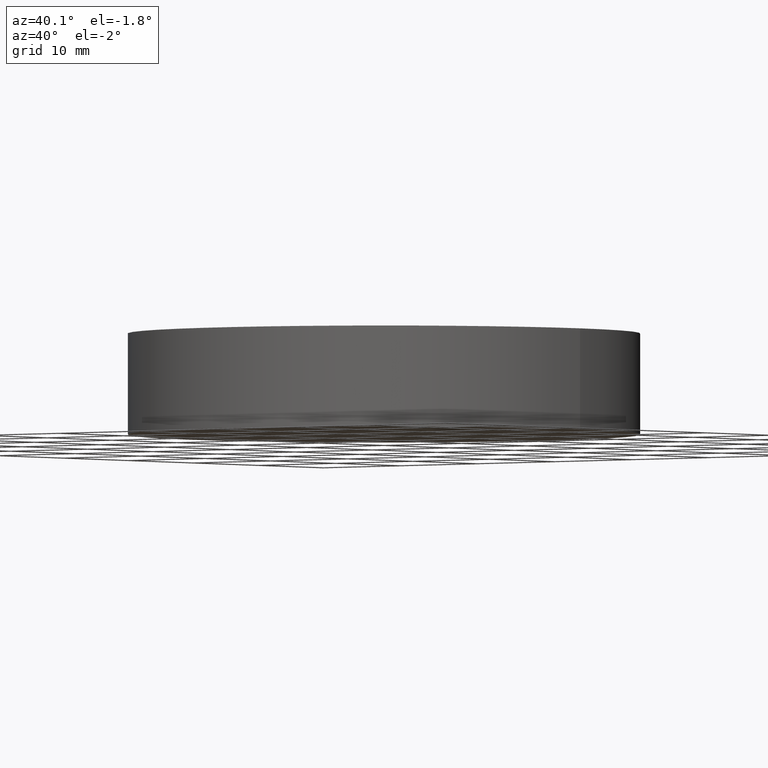
[diagram: clean part render]
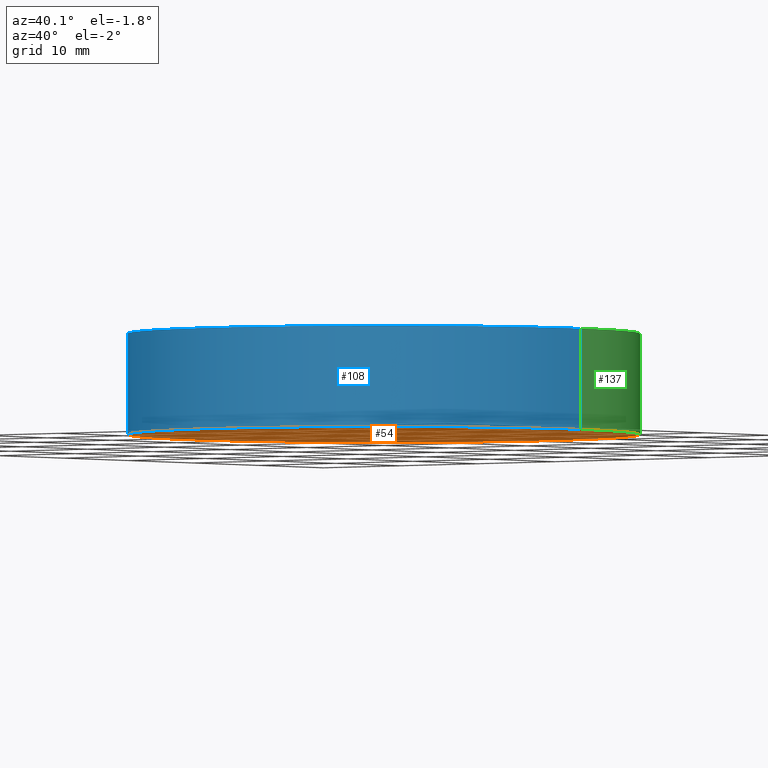
[diagram: same view with three faces highlighted in distinct colors, each labeled with its STEP entity id]
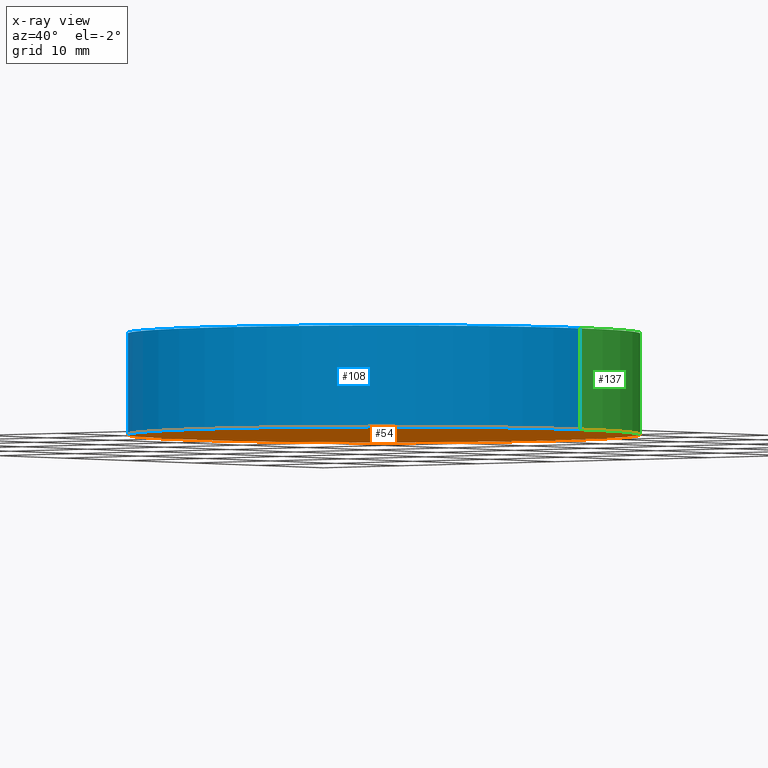
[diagram: x-ray of the same camera — body ghosted, the three highlighted faces saturated]
A machine part, auxiliary view with three faces highlighted in distinct colors.
The next image is the same camera in x-ray (body ghosted, the three faces saturated) — at least one of them is partly hidden behind the body in this view.
Their STEP definitions:

[orange] entity #54 — the highlighted planar face has unit normal (0, 0, 1).
#7 = DIRECTION ( 'NONE',  ( 1.000000000000000000, 0.0000000000000000000, 0.0000000000000000000 ) ) ;
#10 = CARTESIAN_POINT ( 'NONE',  ( 0.0000000000000000000, 0.0000000000000000000, 0.0000000000000000000 ) ) ;
#19 = DIRECTION ( 'NONE',  ( 1.000000000000000000, 0.0000000000000000000, -0.0000000000000000000 ) ) ;
#21 = EDGE_CURVE ( 'NONE', #52, #90, #109, .T. ) ;
#26 = PLANE ( 'NONE',  #58 ) ;
#32 = AXIS2_PLACEMENT_3D ( 'NONE', #10, #78, #136 ) ;
#34 = FACE_OUTER_BOUND ( 'NONE', #65, .T. ) ;
#36 = CARTESIAN_POINT ( 'NONE',  ( -25.39999999999999900, 0.0000000000000000000, 0.0000000000000000000 ) ) ;
#49 = AXIS2_PLACEMENT_3D ( 'NONE', #76, #72, #7 ) ;
#52 = VERTEX_POINT ( 'NONE', #36 ) ;
#54 = ADVANCED_FACE ( 'NONE', ( #34 ), #26, .F. ) ;
#55 = EDGE_CURVE ( 'NONE', #90, #52, #138, .T. ) ;
#58 = AXIS2_PLACEMENT_3D ( 'NONE', #66, #83, #19 ) ;
#65 = EDGE_LOOP ( 'NONE', ( #114, #106 ) ) ;
#66 = CARTESIAN_POINT ( 'NONE',  ( 0.0000000000000000000, 0.0000000000000000000, 0.0000000000000000000 ) ) ;
#72 = DIRECTION ( 'NONE',  ( 0.0000000000000000000, 0.0000000000000000000, 1.000000000000000000 ) ) ;
#76 = CARTESIAN_POINT ( 'NONE',  ( 0.0000000000000000000, 0.0000000000000000000, 0.0000000000000000000 ) ) ;
#78 = DIRECTION ( 'NONE',  ( 0.0000000000000000000, 0.0000000000000000000, 1.000000000000000000 ) ) ;
#83 = DIRECTION ( 'NONE',  ( 0.0000000000000000000, 0.0000000000000000000, 1.000000000000000000 ) ) ;
#90 = VERTEX_POINT ( 'NONE', #134 ) ;
#106 = ORIENTED_EDGE ( 'NONE', *, *, #55, .F. ) ;
#109 = CIRCLE ( 'NONE', #32, 25.39999999999999900 ) ;
#114 = ORIENTED_EDGE ( 'NONE', *, *, #21, .F. ) ;
#134 = CARTESIAN_POINT ( 'NONE',  ( 25.39999999999999900, 3.110602869834276900E-015, 0.0000000000000000000 ) ) ;
#136 = DIRECTION ( 'NONE',  ( 1.000000000000000000, 0.0000000000000000000, 0.0000000000000000000 ) ) ;
#138 = CIRCLE ( 'NONE', #49, 25.39999999999999900 ) ;

[blue] entity #108 — the highlighted cylindrical surface (partial cylindrical patch) has radius 25.4 mm, axis along (-0, -0, -1).
#6 = CARTESIAN_POINT ( 'NONE',  ( 0.0000000000000000000, 0.0000000000000000000, 10.00000000000000000 ) ) ;
#8 = ORIENTED_EDGE ( 'NONE', *, *, #85, .F. ) ;
#9 = EDGE_CURVE ( 'NONE', #140, #90, #20, .T. ) ;
#10 = CARTESIAN_POINT ( 'NONE',  ( 0.0000000000000000000, 0.0000000000000000000, 0.0000000000000000000 ) ) ;
#18 = FACE_OUTER_BOUND ( 'NONE', #33, .T. ) ;
#20 = LINE ( 'NONE', #96, #47 ) ;
#21 = EDGE_CURVE ( 'NONE', #52, #90, #109, .T. ) ;
#27 = ORIENTED_EDGE ( 'NONE', *, *, #9, .F. ) ;
#28 = DIRECTION ( 'NONE',  ( -0.0000000000000000000, -0.0000000000000000000, -1.000000000000000000 ) ) ;
#30 = EDGE_CURVE ( 'NONE', #84, #52, #131, .T. ) ;
#32 = AXIS2_PLACEMENT_3D ( 'NONE', #10, #78, #136 ) ;
#33 = EDGE_LOOP ( 'NONE', ( #27, #8, #121, #119 ) ) ;
#35 = CARTESIAN_POINT ( 'NONE',  ( -25.39999999999999900, 0.0000000000000000000, 10.00000000000000000 ) ) ;
#36 = CARTESIAN_POINT ( 'NONE',  ( -25.39999999999999900, 0.0000000000000000000, 0.0000000000000000000 ) ) ;
#39 = DIRECTION ( 'NONE',  ( 0.0000000000000000000, 0.0000000000000000000, 1.000000000000000000 ) ) ;
#42 = CYLINDRICAL_SURFACE ( 'NONE', #117, 25.39999999999999900 ) ;
#47 = VECTOR ( 'NONE', #28, 1000.000000000000000 ) ;
#52 = VERTEX_POINT ( 'NONE', #36 ) ;
#61 = DIRECTION ( 'NONE',  ( -0.0000000000000000000, -0.0000000000000000000, -1.000000000000000000 ) ) ;
#67 = DIRECTION ( 'NONE',  ( -1.000000000000000000, 0.0000000000000000000, 0.0000000000000000000 ) ) ;
#68 = AXIS2_PLACEMENT_3D ( 'NONE', #125, #39, #116 ) ;
#77 = VECTOR ( 'NONE', #86, 1000.000000000000000 ) ;
#78 = DIRECTION ( 'NONE',  ( 0.0000000000000000000, 0.0000000000000000000, 1.000000000000000000 ) ) ;
#84 = VERTEX_POINT ( 'NONE', #120 ) ;
#85 = EDGE_CURVE ( 'NONE', #84, #140, #110, .T. ) ;
#86 = DIRECTION ( 'NONE',  ( -0.0000000000000000000, -0.0000000000000000000, -1.000000000000000000 ) ) ;
#90 = VERTEX_POINT ( 'NONE', #134 ) ;
#91 = CARTESIAN_POINT ( 'NONE',  ( 25.39999999999999900, 3.110602869834276900E-015, 10.00000000000000000 ) ) ;
#96 = CARTESIAN_POINT ( 'NONE',  ( 25.39999999999999900, 3.110602869834276900E-015, 10.00000000000000000 ) ) ;
#108 = ADVANCED_FACE ( 'NONE', ( #18 ), #42, .T. ) ;
#109 = CIRCLE ( 'NONE', #32, 25.39999999999999900 ) ;
#110 = CIRCLE ( 'NONE', #68, 25.39999999999999900 ) ;
#116 = DIRECTION ( 'NONE',  ( 1.000000000000000000, 0.0000000000000000000, 0.0000000000000000000 ) ) ;
#117 = AXIS2_PLACEMENT_3D ( 'NONE', #6, #61, #67 ) ;
#119 = ORIENTED_EDGE ( 'NONE', *, *, #21, .T. ) ;
#120 = CARTESIAN_POINT ( 'NONE',  ( -25.39999999999999900, 0.0000000000000000000, 10.00000000000000000 ) ) ;
#121 = ORIENTED_EDGE ( 'NONE', *, *, #30, .T. ) ;
#125 = CARTESIAN_POINT ( 'NONE',  ( 0.0000000000000000000, 0.0000000000000000000, 10.00000000000000000 ) ) ;
#131 = LINE ( 'NONE', #35, #77 ) ;
#134 = CARTESIAN_POINT ( 'NONE',  ( 25.39999999999999900, 3.110602869834276900E-015, 0.0000000000000000000 ) ) ;
#136 = DIRECTION ( 'NONE',  ( 1.000000000000000000, 0.0000000000000000000, 0.0000000000000000000 ) ) ;
#140 = VERTEX_POINT ( 'NONE', #91 ) ;

[green] entity #137 — the highlighted cylindrical surface (partial cylindrical patch) has radius 25.4 mm, axis along (-0, -0, -1).
#2 = AXIS2_PLACEMENT_3D ( 'NONE', #127, #95, #50 ) ;
#4 = ORIENTED_EDGE ( 'NONE', *, *, #9, .T. ) ;
#7 = DIRECTION ( 'NONE',  ( 1.000000000000000000, 0.0000000000000000000, 0.0000000000000000000 ) ) ;
#9 = EDGE_CURVE ( 'NONE', #140, #90, #20, .T. ) ;
#16 = EDGE_CURVE ( 'NONE', #140, #84, #81, .T. ) ;
#20 = LINE ( 'NONE', #96, #47 ) ;
#28 = DIRECTION ( 'NONE',  ( -0.0000000000000000000, -0.0000000000000000000, -1.000000000000000000 ) ) ;
#30 = EDGE_CURVE ( 'NONE', #84, #52, #131, .T. ) ;
#35 = CARTESIAN_POINT ( 'NONE',  ( -25.39999999999999900, 0.0000000000000000000, 10.00000000000000000 ) ) ;
#36 = CARTESIAN_POINT ( 'NONE',  ( -25.39999999999999900, 0.0000000000000000000, 0.0000000000000000000 ) ) ;
#38 = CARTESIAN_POINT ( 'NONE',  ( 0.0000000000000000000, 0.0000000000000000000, 10.00000000000000000 ) ) ;
#47 = VECTOR ( 'NONE', #28, 1000.000000000000000 ) ;
#49 = AXIS2_PLACEMENT_3D ( 'NONE', #76, #72, #7 ) ;
#50 = DIRECTION ( 'NONE',  ( 1.000000000000000000, 0.0000000000000000000, 0.0000000000000000000 ) ) ;
#52 = VERTEX_POINT ( 'NONE', #36 ) ;
#55 = EDGE_CURVE ( 'NONE', #90, #52, #138, .T. ) ;
#59 = FACE_OUTER_BOUND ( 'NONE', #69, .T. ) ;
#69 = EDGE_LOOP ( 'NONE', ( #103, #4, #135, #88 ) ) ;
#72 = DIRECTION ( 'NONE',  ( 0.0000000000000000000, 0.0000000000000000000, 1.000000000000000000 ) ) ;
#76 = CARTESIAN_POINT ( 'NONE',  ( 0.0000000000000000000, 0.0000000000000000000, 0.0000000000000000000 ) ) ;
#77 = VECTOR ( 'NONE', #86, 1000.000000000000000 ) ;
#81 = CIRCLE ( 'NONE', #2, 25.39999999999999900 ) ;
#84 = VERTEX_POINT ( 'NONE', #120 ) ;
#86 = DIRECTION ( 'NONE',  ( -0.0000000000000000000, -0.0000000000000000000, -1.000000000000000000 ) ) ;
#88 = ORIENTED_EDGE ( 'NONE', *, *, #30, .F. ) ;
#90 = VERTEX_POINT ( 'NONE', #134 ) ;
#91 = CARTESIAN_POINT ( 'NONE',  ( 25.39999999999999900, 3.110602869834276900E-015, 10.00000000000000000 ) ) ;
#95 = DIRECTION ( 'NONE',  ( 0.0000000000000000000, 0.0000000000000000000, 1.000000000000000000 ) ) ;
#96 = CARTESIAN_POINT ( 'NONE',  ( 25.39999999999999900, 3.110602869834276900E-015, 10.00000000000000000 ) ) ;
#102 = DIRECTION ( 'NONE',  ( -1.000000000000000000, 0.0000000000000000000, 0.0000000000000000000 ) ) ;
#103 = ORIENTED_EDGE ( 'NONE', *, *, #16, .F. ) ;
#115 = DIRECTION ( 'NONE',  ( -0.0000000000000000000, -0.0000000000000000000, -1.000000000000000000 ) ) ;
#120 = CARTESIAN_POINT ( 'NONE',  ( -25.39999999999999900, 0.0000000000000000000, 10.00000000000000000 ) ) ;
#122 = AXIS2_PLACEMENT_3D ( 'NONE', #38, #115, #102 ) ;
#126 = CYLINDRICAL_SURFACE ( 'NONE', #122, 25.39999999999999900 ) ;
#127 = CARTESIAN_POINT ( 'NONE',  ( 0.0000000000000000000, 0.0000000000000000000, 10.00000000000000000 ) ) ;
#131 = LINE ( 'NONE', #35, #77 ) ;
#134 = CARTESIAN_POINT ( 'NONE',  ( 25.39999999999999900, 3.110602869834276900E-015, 0.0000000000000000000 ) ) ;
#135 = ORIENTED_EDGE ( 'NONE', *, *, #55, .T. ) ;
#137 = ADVANCED_FACE ( 'NONE', ( #59 ), #126, .T. ) ;
#138 = CIRCLE ( 'NONE', #49, 25.39999999999999900 ) ;
#140 = VERTEX_POINT ( 'NONE', #91 ) ;